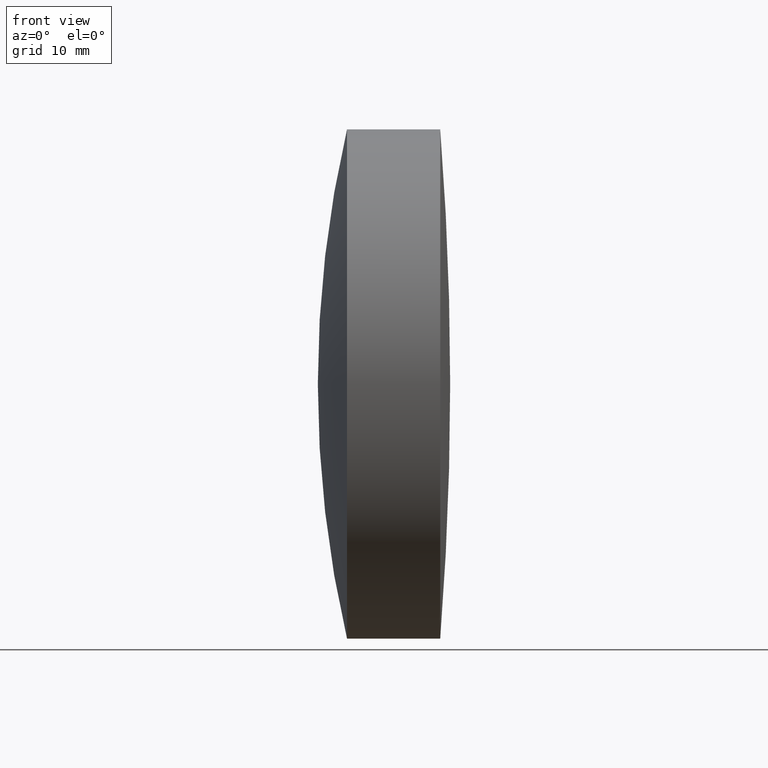
[diagram: clean part render]
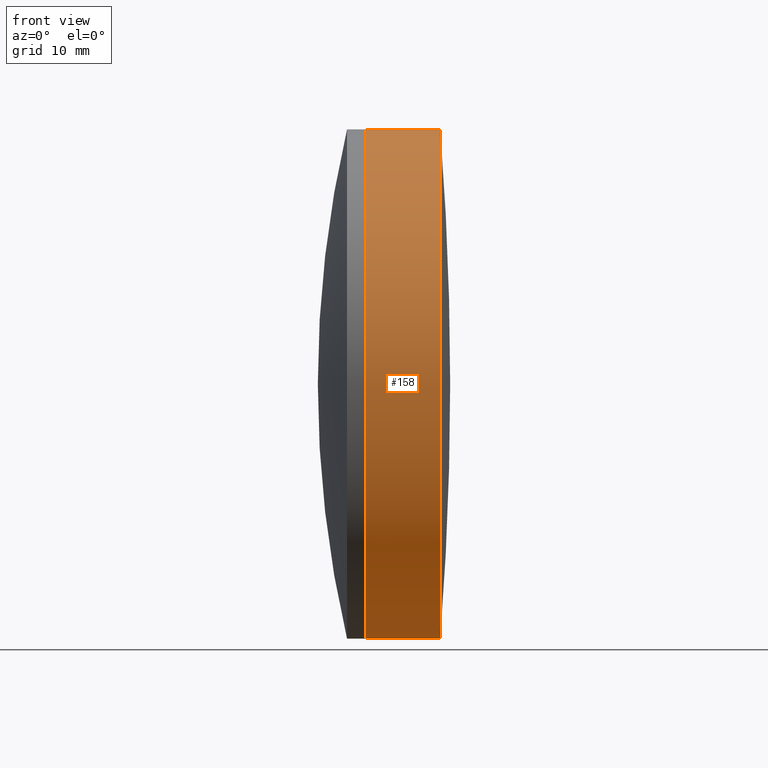
[diagram: same view with one face highlighted and labeled with its STEP entity id]
A machine part, front view. The second image highlights one B-rep face of the part: STEP entity #158.
In plain terms, the highlighted cylindrical surface (partial cylindrical patch) has radius 25.4 mm, axis along (-1, -0, -0).
Its self-contained STEP definition (entity closure, byte-faithful):
#9 = CIRCLE ( 'NONE', #241, 25.39999999999997000 ) ;
#10 = CYLINDRICAL_SURFACE ( 'NONE', #160, 25.40000000000000900 ) ;
#24 = DIRECTION ( 'NONE',  ( 0.0000000000000000000, 0.0000000000000000000, 1.000000000000000000 ) ) ;
#25 = CARTESIAN_POINT ( 'NONE',  ( -0.5519199926577972300, 0.0000000000000000000, 0.0000000000000000000 ) ) ;
#53 = CARTESIAN_POINT ( 'NONE',  ( 557.6867918586409600, 0.0000000000000000000, 25.39999999999997000 ) ) ;
#54 = CARTESIAN_POINT ( 'NONE',  ( 557.6867918586409600, 3.110602869834276100E-015, -25.39999999999997000 ) ) ;
#55 = ORIENTED_EDGE ( 'NONE', *, *, #288, .T. ) ;
#56 = CARTESIAN_POINT ( 'NONE',  ( 550.2556910666054400, 0.0000000000000000000, 25.40000000000002700 ) ) ;
#77 = CIRCLE ( 'NONE', #187, 25.40000000000004800 ) ;
#78 = DIRECTION ( 'NONE',  ( 0.0000000000000000000, 0.0000000000000000000, 1.000000000000000000 ) ) ;
#79 = CARTESIAN_POINT ( 'NONE',  ( -0.5519199926577972300, 3.110602869834278000E-015, -25.40000000000000900 ) ) ;
#80 = CARTESIAN_POINT ( 'NONE',  ( -0.5519199926577972300, 0.0000000000000000000, 25.40000000000000900 ) ) ;
#90 = LINE ( 'NONE', #79, #176 ) ;
#109 = CARTESIAN_POINT ( 'NONE',  ( 557.6867918586409600, 0.0000000000000000000, 0.0000000000000000000 ) ) ;
#115 = LINE ( 'NONE', #80, #140 ) ;
#132 = VERTEX_POINT ( 'NONE', #56 ) ;
#137 = EDGE_CURVE ( 'NONE', #287, #300, #9, .T. ) ;
#140 = VECTOR ( 'NONE', #296, 1000.000000000000000 ) ;
#144 = ORIENTED_EDGE ( 'NONE', *, *, #155, .F. ) ;
#153 = ORIENTED_EDGE ( 'NONE', *, *, #180, .F. ) ;
#155 = EDGE_CURVE ( 'NONE', #287, #286, #90, .T. ) ;
#158 = ADVANCED_FACE ( 'NONE', ( #195 ), #10, .T. ) ;
#160 = AXIS2_PLACEMENT_3D ( 'NONE', #25, #242, #24 ) ;
#176 = VECTOR ( 'NONE', #312, 1000.000000000000000 ) ;
#180 = EDGE_CURVE ( 'NONE', #286, #132, #77, .T. ) ;
#187 = AXIS2_PLACEMENT_3D ( 'NONE', #307, #306, #196 ) ;
#195 = FACE_OUTER_BOUND ( 'NONE', #223, .T. ) ;
#196 = DIRECTION ( 'NONE',  ( 0.0000000000000000000, 0.0000000000000000000, 1.000000000000000000 ) ) ;
#223 = EDGE_LOOP ( 'NONE', ( #144, #310, #55, #153 ) ) ;
#241 = AXIS2_PLACEMENT_3D ( 'NONE', #109, #272, #78 ) ;
#242 = DIRECTION ( 'NONE',  ( -1.000000000000000000, -0.0000000000000000000, -0.0000000000000000000 ) ) ;
#272 = DIRECTION ( 'NONE',  ( -1.000000000000000000, -0.0000000000000000000, -0.0000000000000000000 ) ) ;
#274 = CARTESIAN_POINT ( 'NONE',  ( 550.2556910666054400, 3.110602869834279600E-015, -25.40000000000003400 ) ) ;
#286 = VERTEX_POINT ( 'NONE', #274 ) ;
#287 = VERTEX_POINT ( 'NONE', #54 ) ;
#288 = EDGE_CURVE ( 'NONE', #300, #132, #115, .T. ) ;
#296 = DIRECTION ( 'NONE',  ( -1.000000000000000000, -0.0000000000000000000, -0.0000000000000000000 ) ) ;
#300 = VERTEX_POINT ( 'NONE', #53 ) ;
#306 = DIRECTION ( 'NONE',  ( -1.000000000000000000, -0.0000000000000000000, -0.0000000000000000000 ) ) ;
#307 = CARTESIAN_POINT ( 'NONE',  ( 550.2556910666054400, 0.0000000000000000000, 0.0000000000000000000 ) ) ;
#310 = ORIENTED_EDGE ( 'NONE', *, *, #137, .T. ) ;
#312 = DIRECTION ( 'NONE',  ( -1.000000000000000000, -0.0000000000000000000, -0.0000000000000000000 ) ) ;